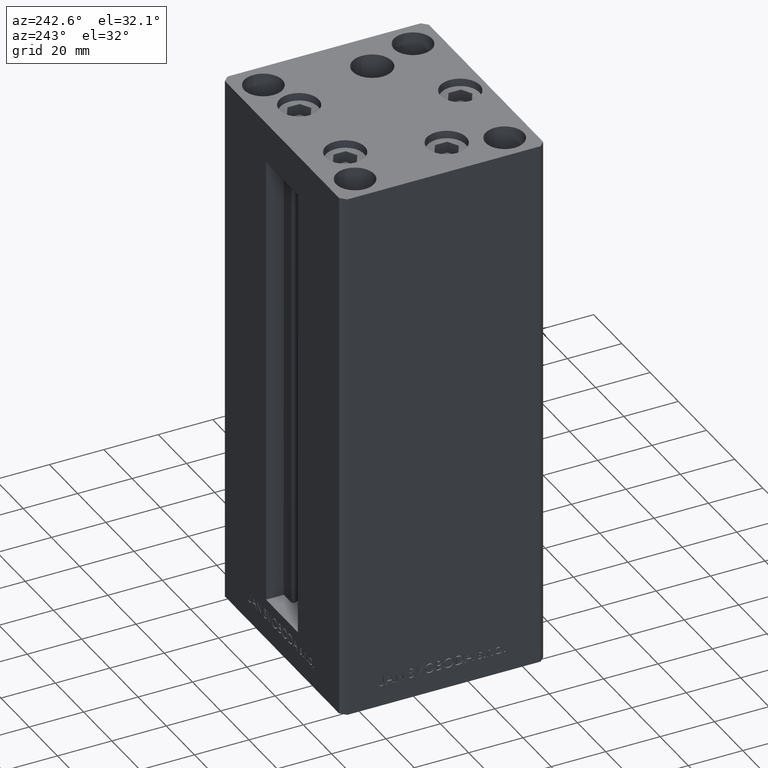
[diagram: clean part render]
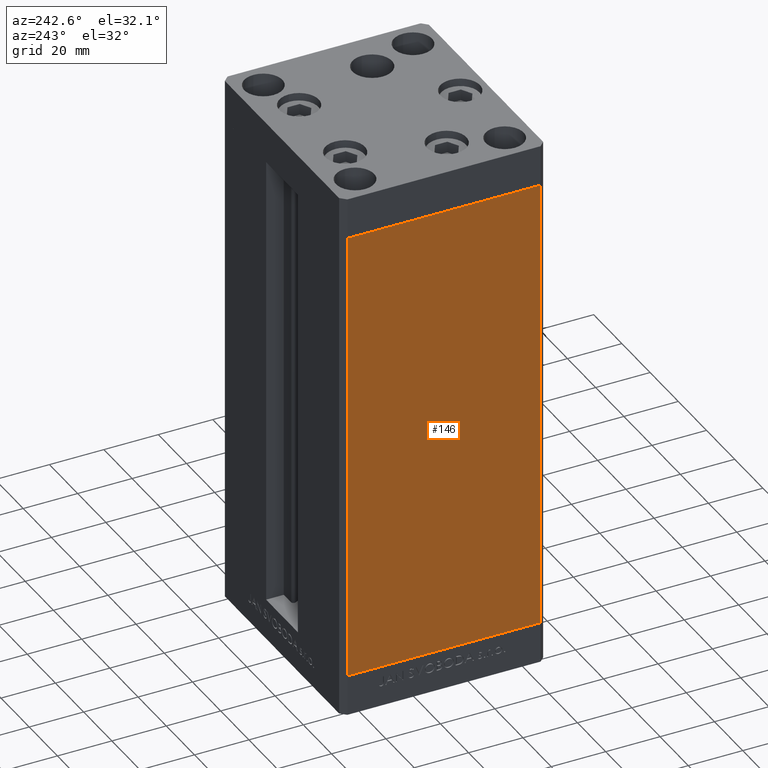
[diagram: same view with one face highlighted and labeled with its STEP entity id]
A machine part, auxiliary view. The second image highlights one B-rep face of the part: STEP entity #146.
In plain terms, the highlighted planar face has unit normal (1, 0, 0).
Its self-contained STEP definition (entity closure, byte-faithful):
#146 = ADVANCED_FACE ( 'NONE', ( #33910 ), #34157, .F. ) ;
#1439 = VECTOR ( 'NONE', #32196, 1000.000000000000000 ) ;
#1803 = LINE ( 'NONE', #16997, #1439 ) ;
#3126 = CARTESIAN_POINT ( 'NONE',  ( -42.50000000000000711, 35.50000000000001421, 0.000000000000000000 ) ) ;
#3242 = EDGE_LOOP ( 'NONE', ( #29297, #10462, #12982, #41923 ) ) ;
#6992 = DIRECTION ( 'NONE',  ( -2.931927001650941360E-16, 1.000000000000000000, 0.000000000000000000 ) ) ;
#7309 = DIRECTION ( 'NONE',  ( 2.931927001650941360E-16, -1.000000000000000000, 0.000000000000000000 ) ) ;
#10462 = ORIENTED_EDGE ( 'NONE', *, *, #27899, .F. ) ;
#10703 = EDGE_CURVE ( 'NONE', #35925, #34146, #25062, .T. ) ;
#11737 = CARTESIAN_POINT ( 'NONE',  ( -42.50000000000000711, 35.50000000000001421, 168.5000000000000000 ) ) ;
#11924 = VECTOR ( 'NONE', #15820, 1000.000000000000000 ) ;
#12535 = CARTESIAN_POINT ( 'NONE',  ( -42.50000000000000711, 35.50000000000001421, 168.5000000000000000 ) ) ;
#12982 = ORIENTED_EDGE ( 'NONE', *, *, #20527, .F. ) ;
#14468 = DIRECTION ( 'NONE',  ( 1.000000000000000000, 2.931927001650941360E-16, -0.000000000000000000 ) ) ;
#15347 = VERTEX_POINT ( 'NONE', #43482 ) ;
#15820 = DIRECTION ( 'NONE',  ( -0.000000000000000000, -0.000000000000000000, -1.000000000000000000 ) ) ;
#16997 = CARTESIAN_POINT ( 'NONE',  ( -42.50000000000000711, 35.50000000000001421, 168.5000000000000000 ) ) ;
#17694 = VECTOR ( 'NONE', #7309, 1000.000000000000000 ) ;
#17831 = CARTESIAN_POINT ( 'NONE',  ( -42.49999999999998579, -35.50000000000000711, 168.5000000000000000 ) ) ;
#20527 = EDGE_CURVE ( 'NONE', #35925, #43386, #1803, .T. ) ;
#20847 = CARTESIAN_POINT ( 'NONE',  ( -42.50000000000000711, 35.50000000000001421, 168.5000000000000000 ) ) ;
#25062 = LINE ( 'NONE', #20847, #41805 ) ;
#27521 = CARTESIAN_POINT ( 'NONE',  ( -42.49999999999998579, -35.50000000000000711, 168.5000000000000000 ) ) ;
#27899 = EDGE_CURVE ( 'NONE', #43386, #15347, #34748, .T. ) ;
#29297 = ORIENTED_EDGE ( 'NONE', *, *, #44682, .T. ) ;
#32196 = DIRECTION ( 'NONE',  ( 2.931927001650941360E-16, -1.000000000000000000, 0.000000000000000000 ) ) ;
#33910 = FACE_OUTER_BOUND ( 'NONE', #3242, .T. ) ;
#34146 = VERTEX_POINT ( 'NONE', #3126 ) ;
#34157 = PLANE ( 'NONE',  #48864 ) ;
#34748 = LINE ( 'NONE', #27521, #11924 ) ;
#35925 = VERTEX_POINT ( 'NONE', #12535 ) ;
#36713 = LINE ( 'NONE', #48160, #17694 ) ;
#40255 = DIRECTION ( 'NONE',  ( -0.000000000000000000, -0.000000000000000000, -1.000000000000000000 ) ) ;
#41805 = VECTOR ( 'NONE', #40255, 1000.000000000000000 ) ;
#41923 = ORIENTED_EDGE ( 'NONE', *, *, #10703, .T. ) ;
#43386 = VERTEX_POINT ( 'NONE', #17831 ) ;
#43482 = CARTESIAN_POINT ( 'NONE',  ( -42.49999999999998579, -35.50000000000000711, 0.000000000000000000 ) ) ;
#44682 = EDGE_CURVE ( 'NONE', #34146, #15347, #36713, .T. ) ;
#48160 = CARTESIAN_POINT ( 'NONE',  ( -42.50000000000000711, 35.50000000000001421, 0.000000000000000000 ) ) ;
#48864 = AXIS2_PLACEMENT_3D ( 'NONE', #11737, #14468, #6992 ) ;